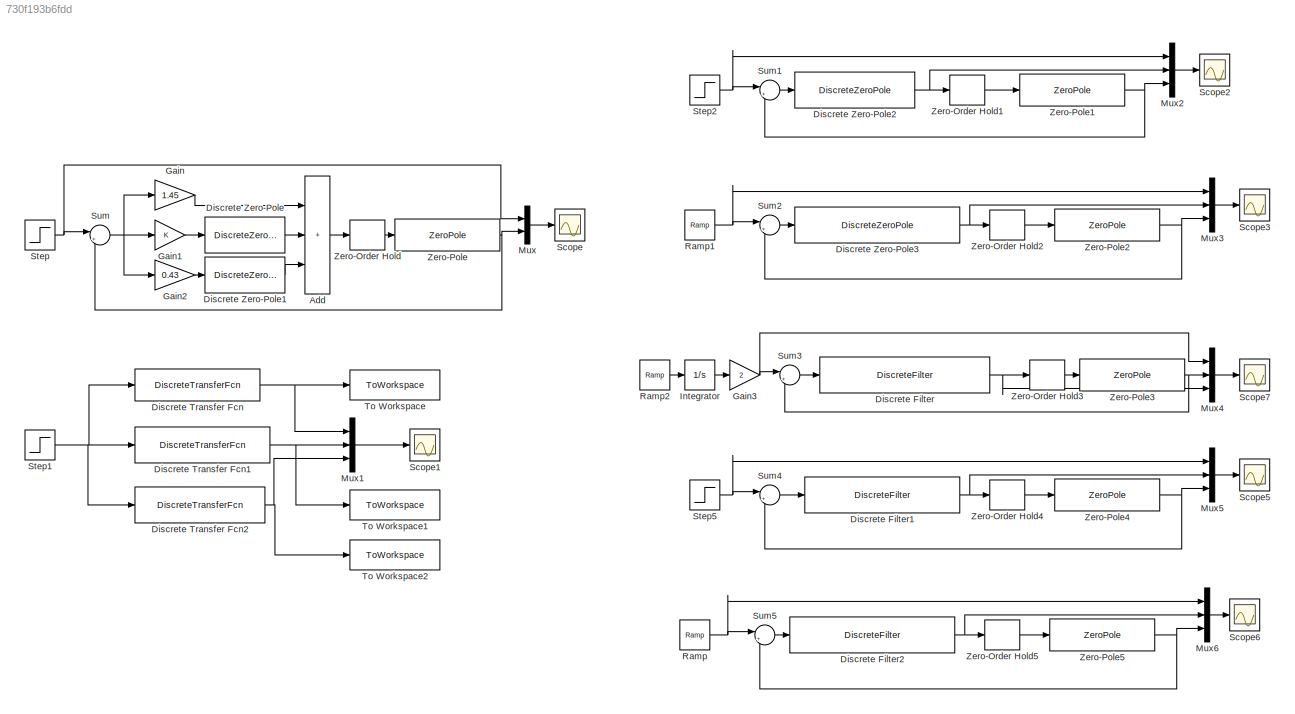
MODEL slx_730f193b6fdd
KIND model
CONFIG AbsTol = auto
CONFIG EnableMultiTasking = off
CONFIG FixedStep = auto
CONFIG MaxStep = auto
CONFIG MinStep = auto
CONFIG RelTol = 1e-3
CONFIG SampleTimeConstraint = Unconstrained
CONFIG SolverName = VariableStepAuto
CONFIG StartTime = 0.0
CONFIG StopTime = 5
BLOCK [Sum] Add
  IconShape = rectangular
  Inputs = +++
BLOCK [DiscreteFilter] Discrete Filter
  Denominator = [1 -1.282 -0.436 0.718]
  InputPortMap = u0
  Numerator = [0.8154 -1.1154 0.5718 -0.1]
  SampleTime = 1
BLOCK [DiscreteFilter] Discrete Filter1
  Denominator = [1 -0.582 -0.418]
  InputPortMap = u0
  Numerator = [0.158 -0.2161 0.0581]
  SampleTime = 1
BLOCK [DiscreteFilter] Discrete Filter2
  Denominator = [1 -1.407 -0.184 0.593]
  InputPortMap = u0
  Numerator = [0.3827 -0.7482 0.4481 -0.0827]
  SampleTime = 1
BLOCK [DiscreteTransferFcn] Discrete Transfer Fcn
  Denominator = [1 1.679 0.782]
  InputPortMap = u0
  Numerator = [0.0453 0.041]
  SampleTime = 0.1
BLOCK [DiscreteTransferFcn] Discrete Transfer Fcn1
  Denominator = [1 1.1771 0.862]
  InputPortMap = u0
  Numerator = [0.0476 0.043]
  SampleTime = 0.1
BLOCK [DiscreteTransferFcn] Discrete Transfer Fcn2
  Denominator = [1 0.737 0.238]
  InputPortMap = u0
  Numerator = [0.263 0.238]
  SampleTime = 0.1
BLOCK [DiscreteZeroPole] Discrete Zero-Pole
  Gain = 0.05
  Poles = [1]
  SampleTime = 0.1
  Zeros = [-1]
BLOCK [DiscreteZeroPole] Discrete Zero-Pole1
  Gain = 10
  Poles = [0]
  SampleTime = 0.1
BLOCK [DiscreteZeroPole] Discrete Zero-Pole2
  Gain = 0.2717
  Poles = [0.718]
  Zeros = [0.3679]
BLOCK [DiscreteZeroPole] Discrete Zero-Pole3
  Gain = 0.5434
  Poles = [1 -0.718]
  Zeros = [0.5 0.3679]
BLOCK [Gain] Gain
  Gain = 1.45
BLOCK [Gain] Gain1
BLOCK [Gain] Gain2
  Gain = 0.43
BLOCK [Gain] Gain3
  Gain = 2
BLOCK [Integrator] Integrator
BLOCK [Mux] Mux
  DisplayOption = bar
  Inputs = 2
BLOCK [Mux] Mux1
  DisplayOption = bar
  Inputs = 3
BLOCK [Mux] Mux2
  DisplayOption = bar
  Inputs = 3
BLOCK [Mux] Mux3
  DisplayOption = bar
  Inputs = 3
BLOCK [Mux] Mux4
  DisplayOption = bar
  Inputs = 3
BLOCK [Mux] Mux5
  DisplayOption = bar
  Inputs = 3
BLOCK [Mux] Mux6
  DisplayOption = bar
  Inputs = 3
BLOCK [Reference] Ramp  REF=simulink/Sources/Ramp
  SourceBlock = simulink/Sources/Ramp
  SourceType = Ramp
BLOCK [Reference] Ramp1  REF=simulink/Sources/Ramp
  SourceBlock = simulink/Sources/Ramp
  SourceType = Ramp
BLOCK [Reference] Ramp2  REF=simulink/Sources/Ramp
  SourceBlock = simulink/Sources/Ramp
  SourceType = Ramp
BLOCK [Scope] Scope
  Floating = off
  NumInputPorts = 1
  ScopeSpecificationString = Simulink.scopes.TimeScopeBlockCfg('CurrentConfiguration', extmgr.ConfigurationSet(extmgr.Configuration('Core','General UI',true),extmgr.Configuration('Core','Source UI',true),extmgr.Configuration('Sources','WiredSimulink',true),extmgr.Configuration('Visuals','Time Domain',true,'SerializedDisplays',{struct('MinYLimReal','-0.12968','MaxYLimReal','1.1671','YLabelReal','','MinYLimMag','0.00000','MaxYL...<+1332ch>
BLOCK [Scope] Scope1
  Floating = off
  NumInputPorts = 1
  ScopeSpecificationString = Simulink.scopes.TimeScopeBlockCfg('CurrentConfiguration', extmgr.ConfigurationSet(extmgr.Configuration('Core','General UI',true),extmgr.Configuration('Core','Source UI',true),extmgr.Configuration('Sources','WiredSimulink',true,'DataLoggingVariableName','ScopeData1'),extmgr.Configuration('Visuals','Time Domain',true,'SerializedDisplays',{struct('MinYLimReal','-0.0384','MaxYLimReal','0.34557','YLabe...<+1461ch>
BLOCK [Scope] Scope2
  Floating = off
  NumInputPorts = 1
  ScopeSpecificationString = Simulink.scopes.TimeScopeBlockCfg('CurrentConfiguration', extmgr.ConfigurationSet(extmgr.Configuration('Core','General UI',true),extmgr.Configuration('Core','Source UI',true),extmgr.Configuration('Sources','WiredSimulink',true,'DataLoggingVariableName','ScopeData2'),extmgr.Configuration('Visuals','Time Domain',true,'SerializedDisplays',{struct('MinYLimReal','-1.94683','MaxYLimReal','3.13196','YLab...<+1432ch>
BLOCK [Scope] Scope3
  Floating = off
  NumInputPorts = 1
  ScopeSpecificationString = Simulink.scopes.TimeScopeBlockCfg('CurrentConfiguration', extmgr.ConfigurationSet(extmgr.Configuration('Core','General UI',true),extmgr.Configuration('Core','Source UI',true),extmgr.Configuration('Sources','WiredSimulink',true,'DataLoggingVariableName','ScopeData3'),extmgr.Configuration('Visuals','Time Domain',true,'SerializedDisplays',{struct('MinYLimReal','-0.98266','MaxYLimReal','5.66529','YLab...<+1399ch>
BLOCK [Scope] Scope5
  Floating = off
  NumInputPorts = 1
  ScopeSpecificationString = Simulink.scopes.TimeScopeBlockCfg('CurrentConfiguration', extmgr.ConfigurationSet(extmgr.Configuration('Core','General UI',true),extmgr.Configuration('Core','Source UI',true),extmgr.Configuration('Sources','WiredSimulink',true,'DataLoggingVariableName','ScopeData5'),extmgr.Configuration('Visuals','Time Domain',true,'SerializedDisplays',{struct('MinYLimReal','-0.19024','MaxYLimReal','1.13235','YLab...<+1425ch>
BLOCK [Scope] Scope6
  Floating = off
  NumInputPorts = 1
  ScopeSpecificationString = Simulink.scopes.TimeScopeBlockCfg('CurrentConfiguration', extmgr.ConfigurationSet(extmgr.Configuration('Core','General UI',true),extmgr.Configuration('Core','Source UI',true),extmgr.Configuration('Sources','WiredSimulink',true,'DataLoggingVariableName','ScopeData6'),extmgr.Configuration('Visuals','Time Domain',true,'SerializedDisplays',{struct('MinYLimReal','-3.75','MaxYLimReal','33.75','YLabelRea...<+1433ch>
BLOCK [Scope] Scope7
  Floating = off
  NumInputPorts = 1
  ScopeSpecificationString = Simulink.scopes.TimeScopeBlockCfg('CurrentConfiguration', extmgr.ConfigurationSet(extmgr.Configuration('Core','General UI',true),extmgr.Configuration('Core','Source UI',true),extmgr.Configuration('Sources','WiredSimulink',true,'DataLoggingVariableName','ScopeData1'),extmgr.Configuration('Visuals','Time Domain',true,'SerializedDisplays',{struct('MinYLimReal','-3.125','MaxYLimReal','28.125','YLabelR...<+1418ch>
BLOCK [Step] Step
  SampleTime = 0
  Time = 0
BLOCK [Step] Step1
  SampleTime = 0
  Time = 0
BLOCK [Step] Step2
  SampleTime = 0
  Time = 0
BLOCK [Step] Step5
  SampleTime = 0
  Time = 0
BLOCK [Sum] Sum
  Inputs = |+-
BLOCK [Sum] Sum1
  Inputs = |+-
BLOCK [Sum] Sum2
  Inputs = |+-
BLOCK [Sum] Sum3
  Inputs = |+-
BLOCK [Sum] Sum4
  Inputs = |+-
BLOCK [Sum] Sum5
  Inputs = |+-
BLOCK [ToWorkspace] To Workspace
  FixptAsFi = on
  MaxDataPoints = inf
  SampleTime = -1
  SaveFormat = Timeseries
  VariableName = simout
BLOCK [ToWorkspace] To Workspace1
  FixptAsFi = on
  MaxDataPoints = inf
  SampleTime = -1
  SaveFormat = Timeseries
  VariableName = simout1
BLOCK [ToWorkspace] To Workspace2
  FixptAsFi = on
  MaxDataPoints = inf
  SampleTime = -1
  SaveFormat = Timeseries
  VariableName = simout2
BLOCK [ZeroOrderHold] Zero-Order Hold
  SampleTime = -1
BLOCK [ZeroOrderHold] Zero-Order Hold1
  SampleTime = -1
BLOCK [ZeroOrderHold] Zero-Order Hold2
  SampleTime = -1
BLOCK [ZeroOrderHold] Zero-Order Hold3
  SampleTime = -1
BLOCK [ZeroOrderHold] Zero-Order Hold4
  SampleTime = -1
BLOCK [ZeroOrderHold] Zero-Order Hold5
  SampleTime = -1
BLOCK [ZeroPole] Zero-Pole
  Gain = 10
  Poles = [-1 -2]
  Zeros = [ ]
BLOCK [ZeroPole] Zero-Pole1
  Gain = 10
  Poles = [-1 0]
  Zeros = [ ]
BLOCK [ZeroPole] Zero-Pole2
  Gain = 10
  Poles = [-1 0]
  Zeros = [ ]
BLOCK [ZeroPole] Zero-Pole3
  Gain = 10
  Poles = [-1 0]
  Zeros = [ ]
BLOCK [ZeroPole] Zero-Pole4
  Gain = 10
  Poles = [-1 0]
  Zeros = [ ]
BLOCK [ZeroPole] Zero-Pole5
  Gain = 10
  Poles = [-1 0]
  Zeros = [ ]
LINE Add:1 -> Zero-Order Hold:1
NET Discrete Filter1:1 -> Mux5:2, Zero-Order Hold4:1
NET Discrete Filter2:1 -> Mux6:2, Zero-Order Hold5:1
NET Discrete Filter:1 -> Mux4:3, Zero-Order Hold3:1
NET Discrete Transfer Fcn1:1 -> Mux1:2, To Workspace1:1
NET Discrete Transfer Fcn2:1 -> Mux1:3, To Workspace2:1
NET Discrete Transfer Fcn:1 -> Mux1:1, To Workspace:1
LINE Discrete Zero-Pole1:1 -> Add:3
NET Discrete Zero-Pole2:1 -> Mux2:2, Zero-Order Hold1:1
NET Discrete Zero-Pole3:1 -> Mux3:2, Zero-Order Hold2:1
LINE Discrete Zero-Pole:1 -> Add:2
LINE Gain1:1 -> Discrete Zero-Pole:1
LINE Gain2:1 -> Discrete Zero-Pole1:1
NET Gain3:1 -> Mux4:1, Sum3:1
LINE Gain:1 -> Add:1
LINE Integrator:1 -> Gain3:1
LINE Mux1:1 -> Scope1:1
LINE Mux2:1 -> Scope2:1
LINE Mux3:1 -> Scope3:1
LINE Mux4:1 -> Scope7:1
LINE Mux5:1 -> Scope5:1
LINE Mux6:1 -> Scope6:1
LINE Mux:1 -> Scope:1
NET Ramp1:1 -> Mux3:1, Sum2:1
LINE Ramp2:1 -> Integrator:1
NET Ramp:1 -> Mux6:1, Sum5:1
NET Step1:1 -> Discrete Transfer Fcn1:1, Discrete Transfer Fcn2:1, Discrete Transfer Fcn:1
NET Step2:1 -> Mux2:1, Sum1:1
NET Step5:1 -> Mux5:1, Sum4:1
NET Step:1 -> Mux:1, Sum:1
LINE Sum1:1 -> Discrete Zero-Pole2:1
LINE Sum2:1 -> Discrete Zero-Pole3:1
LINE Sum3:1 -> Discrete Filter:1
LINE Sum4:1 -> Discrete Filter1:1
LINE Sum5:1 -> Discrete Filter2:1
NET Sum:1 -> Gain1:1, Gain2:1, Gain:1
LINE Zero-Order Hold1:1 -> Zero-Pole1:1
LINE Zero-Order Hold2:1 -> Zero-Pole2:1
LINE Zero-Order Hold3:1 -> Zero-Pole3:1
LINE Zero-Order Hold4:1 -> Zero-Pole4:1
LINE Zero-Order Hold5:1 -> Zero-Pole5:1
LINE Zero-Order Hold:1 -> Zero-Pole:1
NET Zero-Pole1:1 -> Mux2:3, Sum1:2
NET Zero-Pole2:1 -> Mux3:3, Sum2:2
NET Zero-Pole3:1 -> Mux4:2, Sum3:2
NET Zero-Pole4:1 -> Mux5:3, Sum4:2
NET Zero-Pole5:1 -> Mux6:3, Sum5:2
NET Zero-Pole:1 -> Mux:2, Sum:2
note: NET lines group one-source signal fan-out (src -> all destinations, sorted); 1:1 wires keep LINE
